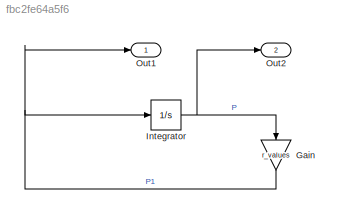
MODEL slx_fbc2fe64a5f6
KIND model
CONFIG AbsTol = auto
CONFIG EnableMultiTasking = off
CONFIG FixedStep = 1
CONFIG MaxStep = auto
CONFIG MinStep = auto
CONFIG RelTol = 1e-3
CONFIG SampleTimeConstraint = Unconstrained
CONFIG SolverName = ode45
CONFIG StartTime = 2000
CONFIG StopTime = 2025
BLOCK [Gain] Gain
  Gain = r_values
  NameLocation = left
BLOCK [Integrator] Integrator
  InitialCondition = ic_values(:,2)
BLOCK [Outport] Out1
BLOCK [Outport] Out2
  Port = 2
NET Gain:1 -> Integrator:1, Out1:1
NET Integrator:1 -> Gain:1, Out2:1
note: NET lines group one-source signal fan-out (src -> all destinations, sorted); 1:1 wires keep LINE
